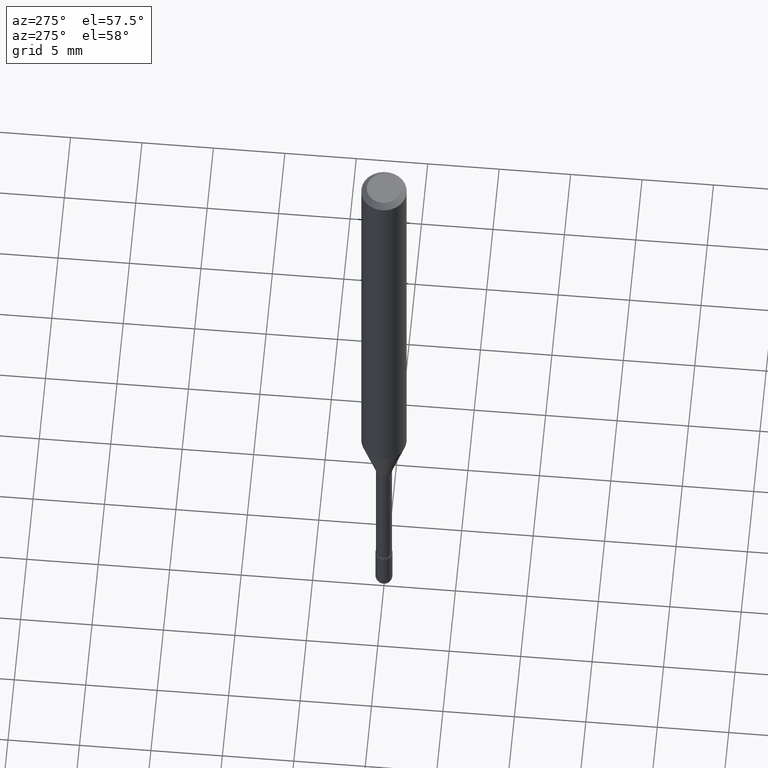
[diagram: clean part render]
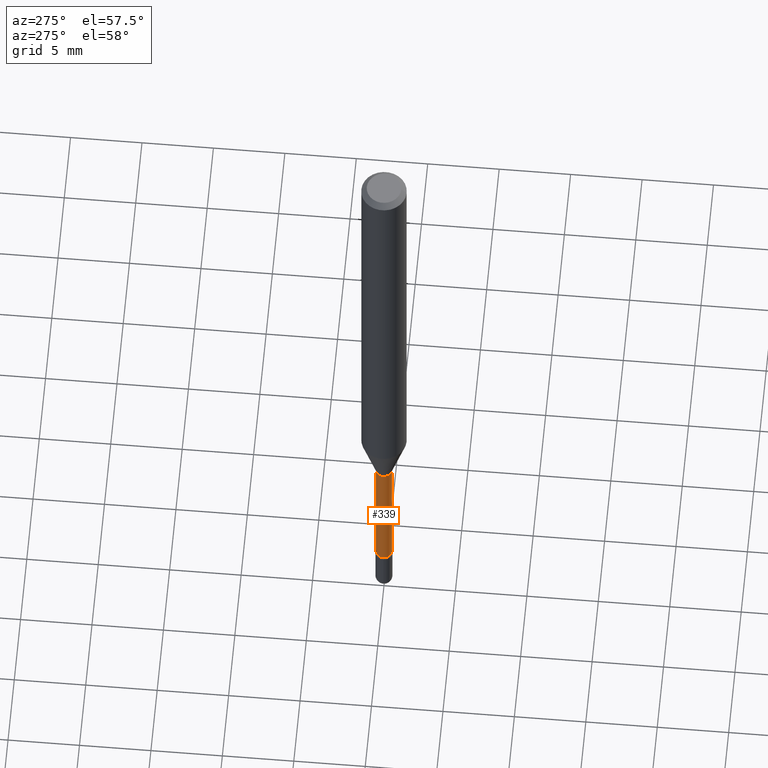
[diagram: same view with one face highlighted and labeled with its STEP entity id]
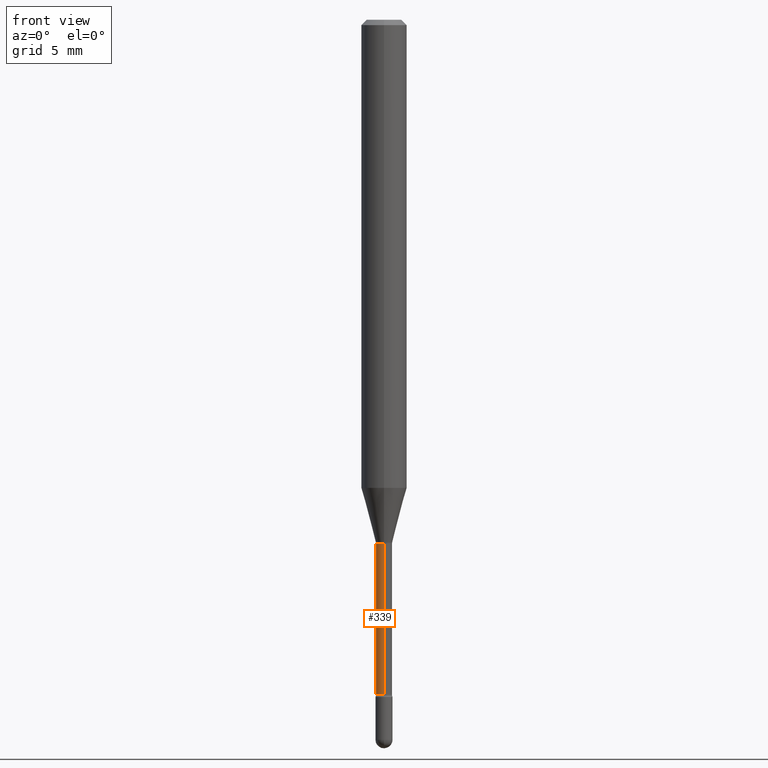
[diagram: same view with one face highlighted and labeled with its STEP entity id]
A machine part, auxiliary view. The second image highlights one B-rep face of the part: STEP entity #339.
A second angle (front view) of the same face is appended — the face is thin or edge-on in the first view.
In plain terms, the highlighted cylindrical surface (edge-blend (fillet) strip) has radius 0.5613 mm, axis along (-0, 0, 1).
Its self-contained STEP definition (entity closure, byte-faithful):
#55 = CARTESIAN_POINT ( 'NONE',  ( -1.169113584055446105E-44, 1.669184350826100908E-30, 4.780733988912460139E-16 ) ) ;
#57 = CARTESIAN_POINT ( 'NONE',  ( 3.516501393302491110E-29, -5.020692343279419732E-15, -1.437974787463811133 ) ) ;
#87 = CYLINDRICAL_SURFACE ( 'NONE', #299, 0.02210000000000003281 ) ;
#94 = DIRECTION ( 'NONE',  ( -6.982962677686265922E-15, -1.000000000000000000, 0.000000000000000000 ) ) ;
#97 = CARTESIAN_POINT ( 'NONE',  ( -1.543234751768666840E-16, -0.02210000000000003281, 5.552356007280204310E-16 ) ) ;
#111 = VERTEX_POINT ( 'NONE', #531 ) ;
#133 = DIRECTION ( 'NONE',  ( -2.445454137276373671E-29, 3.491502345555396345E-15, 1.000000000000000000 ) ) ;
#136 = CARTESIAN_POINT ( 'NONE',  ( 1.570299446030275858E-16, 0.02209999999999498130, -1.437974787463811133 ) ) ;
#139 = CARTESIAN_POINT ( 'NONE',  ( -1.543234751768215957E-16, -0.02210000000000652762, -1.852672283192177582 ) ) ;
#186 = AXIS2_PLACEMENT_3D ( 'NONE', #57, #452, #235 ) ;
#205 = VERTEX_POINT ( 'NONE', #522 ) ;
#216 = LINE ( 'NONE', #344, #412 ) ;
#222 = CIRCLE ( 'NONE', #186, 0.02210000000000000159 ) ;
#235 = DIRECTION ( 'NONE',  ( -6.982962677686265922E-15, -1.000000000000000000, 0.000000000000000000 ) ) ;
#268 = DIRECTION ( 'NONE',  ( -2.445454137276373671E-29, 3.491502345555396345E-15, 1.000000000000000000 ) ) ;
#287 = EDGE_CURVE ( 'NONE', #111, #374, #216, .T. ) ;
#294 = ORIENTED_EDGE ( 'NONE', *, *, #459, .T. ) ;
#299 = AXIS2_PLACEMENT_3D ( 'NONE', #55, #306, #409 ) ;
#306 = DIRECTION ( 'NONE',  ( -2.445454137276373671E-29, 3.491502345555396345E-15, 1.000000000000000000 ) ) ;
#311 = VECTOR ( 'NONE', #268, 39.37007874015748143 ) ;
#315 = CARTESIAN_POINT ( 'NONE',  ( 4.530625099949576267E-29, -6.468609622310960210E-15, -1.852672283192177582 ) ) ;
#331 = EDGE_LOOP ( 'NONE', ( #426, #503, #294, #461 ) ) ;
#339 = ADVANCED_FACE ( 'NONE', ( #402 ), #87, .T. ) ;
#344 = CARTESIAN_POINT ( 'NONE',  ( 1.570299446029823249E-16, 0.02210000000000003281, 4.009111970544717448E-16 ) ) ;
#374 = VERTEX_POINT ( 'NONE', #136 ) ;
#387 = EDGE_CURVE ( 'NONE', #111, #419, #496, .T. ) ;
#391 = DIRECTION ( 'NONE',  ( -2.445454137276373671E-29, 3.491502345555396345E-15, 1.000000000000000000 ) ) ;
#400 = LINE ( 'NONE', #97, #311 ) ;
#402 = FACE_OUTER_BOUND ( 'NONE', #331, .T. ) ;
#409 = DIRECTION ( 'NONE',  ( -6.982962677686265133E-15, -1.000000000000000000, 3.491502345555394767E-15 ) ) ;
#412 = VECTOR ( 'NONE', #391, 39.37007874015748143 ) ;
#419 = VERTEX_POINT ( 'NONE', #139 ) ;
#426 = ORIENTED_EDGE ( 'NONE', *, *, #287, .F. ) ;
#452 = DIRECTION ( 'NONE',  ( -2.445454137276373671E-29, 3.491502345555396345E-15, 1.000000000000000000 ) ) ;
#459 = EDGE_CURVE ( 'NONE', #419, #205, #400, .T. ) ;
#461 = ORIENTED_EDGE ( 'NONE', *, *, #488, .F. ) ;
#488 = EDGE_CURVE ( 'NONE', #374, #205, #222, .T. ) ;
#496 = CIRCLE ( 'NONE', #561, 0.02210000000000006057 ) ;
#503 = ORIENTED_EDGE ( 'NONE', *, *, #387, .T. ) ;
#522 = CARTESIAN_POINT ( 'NONE',  ( -1.543234751768313332E-16, -0.02210000000000502188, -1.437974787463811133 ) ) ;
#531 = CARTESIAN_POINT ( 'NONE',  ( 1.620037437533484049E-16, 0.02209999999999359352, -1.852672283192177582 ) ) ;
#561 = AXIS2_PLACEMENT_3D ( 'NONE', #315, #133, #94 ) ;